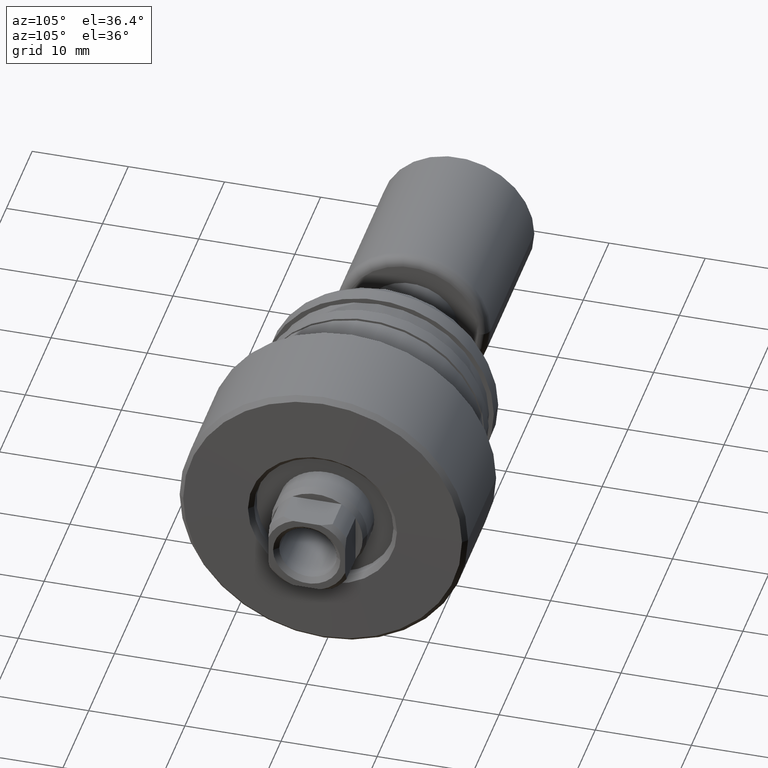
[diagram: clean part render]
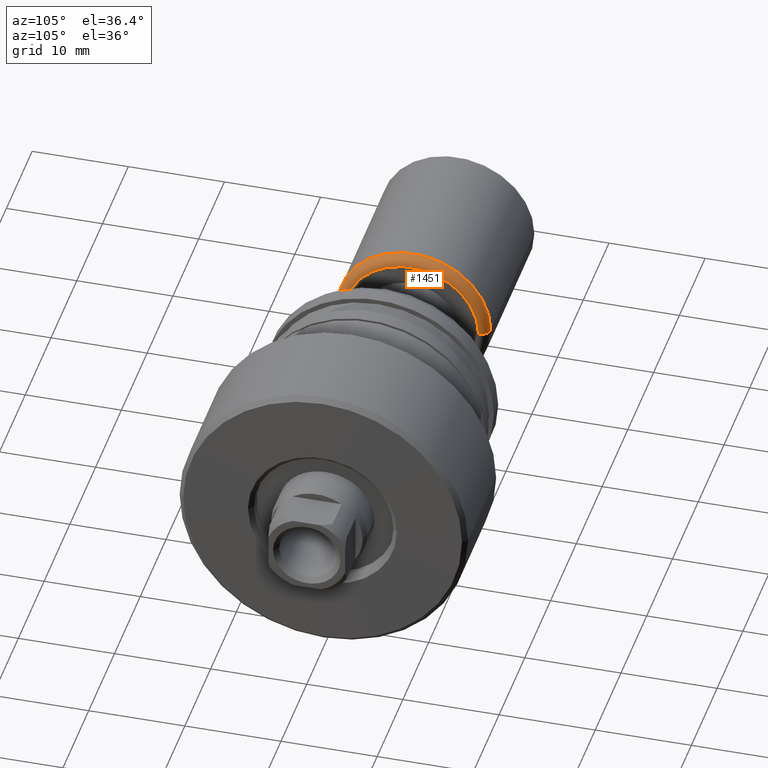
[diagram: same view with one face highlighted and labeled with its STEP entity id]
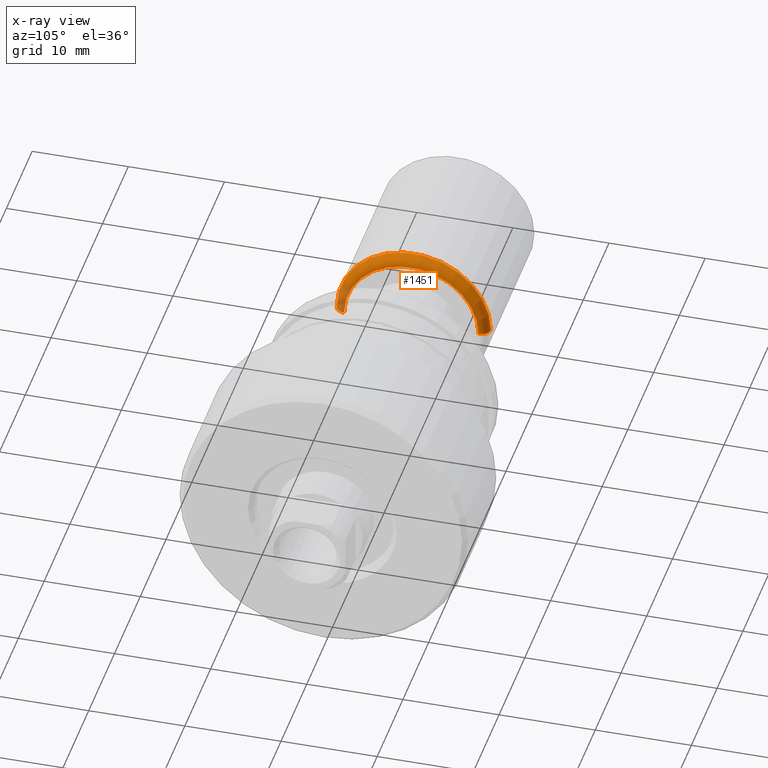
[diagram: x-ray of the same camera — body ghosted, the highlighted face saturated]
A machine part, auxiliary view. The second image highlights one B-rep face of the part: STEP entity #1451.
The next image is the same camera in x-ray: the body ghosted, the highlighted face saturated — about 7% of this face is hidden behind the body in this view.
In plain terms, the highlighted toroidal blend (fillet) surface has major radius 7 mm and minor (blend) radius 1 mm.
Its self-contained STEP definition (entity closure, byte-faithful):
#35 = AXIS2_PLACEMENT_3D ( 'NONE', #2333, #1657, #562 ) ;
#295 = VERTEX_POINT ( 'NONE', #1240 ) ;
#306 = AXIS2_PLACEMENT_3D ( 'NONE', #2305, #463, #2148 ) ;
#428 = ORIENTED_EDGE ( 'NONE', *, *, #1926, .T. ) ;
#463 = DIRECTION ( 'NONE',  ( -1.000000000000000000, -1.069542322069065801E-17, -0.000000000000000000 ) ) ;
#512 = CIRCLE ( 'NONE', #1846, 1.000000000000000888 ) ;
#562 = DIRECTION ( 'NONE',  ( 1.069542322069065801E-17, -1.000000000000000000, 0.000000000000000000 ) ) ;
#603 = DIRECTION ( 'NONE',  ( -1.000000000000000000, 0.000000000000000000, 0.000000000000000000 ) ) ;
#636 = VERTEX_POINT ( 'NONE', #1381 ) ;
#676 = CIRCLE ( 'NONE', #306, 6.999999999999996447 ) ;
#704 = CARTESIAN_POINT ( 'NONE',  ( 18.40000000000006253, 1.967957872607087643E-16, 0.000000000000000000 ) ) ;
#709 = AXIS2_PLACEMENT_3D ( 'NONE', #2337, #1401, #1009 ) ;
#784 = CIRCLE ( 'NONE', #709, 1.000000000000000000 ) ;
#796 = VERTEX_POINT ( 'NONE', #1918 ) ;
#922 = ORIENTED_EDGE ( 'NONE', *, *, #2250, .F. ) ;
#1009 = DIRECTION ( 'NONE',  ( 0.000000000000000000, -1.000000000000000000, -1.224646799147353454E-16 ) ) ;
#1049 = EDGE_CURVE ( 'NONE', #295, #1879, #1277, .T. ) ;
#1128 = DIRECTION ( 'NONE',  ( 0.000000000000000000, 0.000000000000000000, -1.000000000000000000 ) ) ;
#1156 = ORIENTED_EDGE ( 'NONE', *, *, #1405, .T. ) ;
#1209 = EDGE_LOOP ( 'NONE', ( #428, #1156, #1744, #922 ) ) ;
#1240 = CARTESIAN_POINT ( 'NONE',  ( 18.40000000000006253, -7.999999999999996447, 0.000000000000000000 ) ) ;
#1277 = CIRCLE ( 'NONE', #2271, 7.999999999999996447 ) ;
#1280 = TOROIDAL_SURFACE ( 'NONE', #35, 6.999999999999996447, 1.000000000000000444 ) ;
#1311 = CARTESIAN_POINT ( 'NONE',  ( 18.40000000000006253, 7.999999999999996447, 9.797174393178821713E-16 ) ) ;
#1381 = CARTESIAN_POINT ( 'NONE',  ( 19.40000000000006253, -6.999999999999996447, 0.000000000000000000 ) ) ;
#1401 = DIRECTION ( 'NONE',  ( 1.309811581274509052E-33, -1.224646799147353207E-16, 1.000000000000000000 ) ) ;
#1405 = EDGE_CURVE ( 'NONE', #796, #1879, #784, .T. ) ;
#1451 = ADVANCED_FACE ( 'NONE', ( #2358 ), #1280, .T. ) ;
#1657 = DIRECTION ( 'NONE',  ( -1.000000000000000000, -1.069542322069065801E-17, -0.000000000000000000 ) ) ;
#1744 = ORIENTED_EDGE ( 'NONE', *, *, #1049, .F. ) ;
#1846 = AXIS2_PLACEMENT_3D ( 'NONE', #2112, #1128, #603 ) ;
#1876 = DIRECTION ( 'NONE',  ( 0.000000000000000000, -1.000000000000000000, 0.000000000000000000 ) ) ;
#1879 = VERTEX_POINT ( 'NONE', #1311 ) ;
#1918 = CARTESIAN_POINT ( 'NONE',  ( 19.40000000000006253, 6.999999999999996447, 9.184850993605144000E-16 ) ) ;
#1926 = EDGE_CURVE ( 'NONE', #636, #796, #676, .T. ) ;
#2112 = CARTESIAN_POINT ( 'NONE',  ( 18.40000000000006253, -6.999999999999996447, 0.000000000000000000 ) ) ;
#2148 = DIRECTION ( 'NONE',  ( 0.000000000000000000, -1.000000000000000000, 0.000000000000000000 ) ) ;
#2204 = DIRECTION ( 'NONE',  ( -1.000000000000000000, -1.069542322069065801E-17, -0.000000000000000000 ) ) ;
#2250 = EDGE_CURVE ( 'NONE', #636, #295, #512, .T. ) ;
#2271 = AXIS2_PLACEMENT_3D ( 'NONE', #704, #2204, #1876 ) ;
#2305 = CARTESIAN_POINT ( 'NONE',  ( 19.40000000000006253, 2.074912104813994331E-16, 0.000000000000000000 ) ) ;
#2333 = CARTESIAN_POINT ( 'NONE',  ( 18.40000000000006253, 0.000000000000000000, 0.000000000000000000 ) ) ;
#2337 = CARTESIAN_POINT ( 'NONE',  ( 18.40000000000006253, 6.999999999999996447, 8.572527594031468259E-16 ) ) ;
#2358 = FACE_OUTER_BOUND ( 'NONE', #1209, .T. ) ;